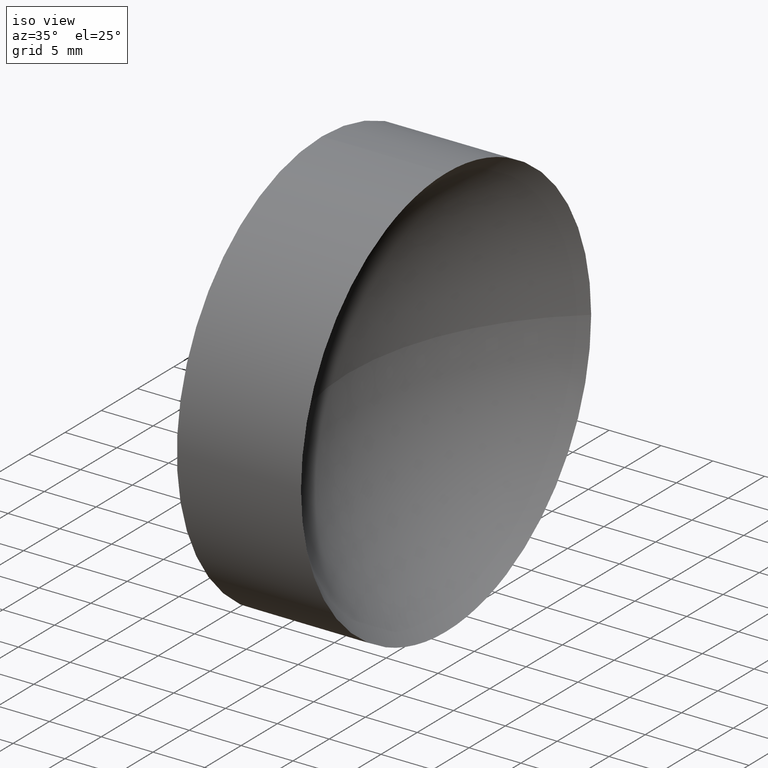
[diagram: clean part render]
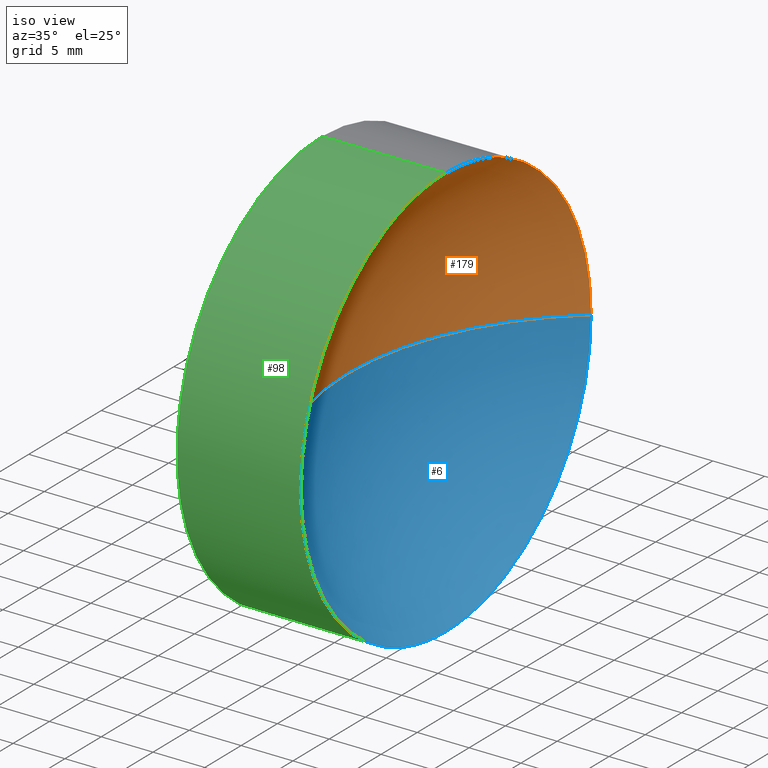
[diagram: same view with three faces highlighted in distinct colors, each labeled with its STEP entity id]
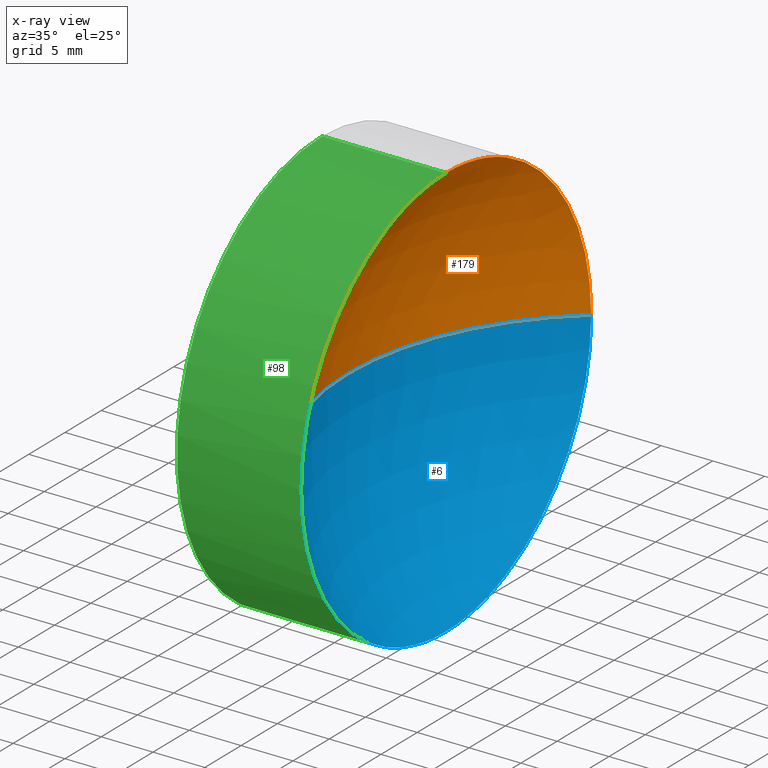
[diagram: x-ray of the same camera — body ghosted, the three highlighted faces saturated]
A machine part, iso view with three faces highlighted in distinct colors.
The next image is the same camera in x-ray (body ghosted, the three faces saturated) — at least one of them is partly hidden behind the body in this view.
Their STEP definitions:

[orange] entity #179 — the highlighted spherical surface has radius 25.84 mm.
#1 = CARTESIAN_POINT ( 'NONE',  ( 143.4842728140176900, 65.22153625845356800, 0.0000000000000000000 ) ) ;
#3 = ORIENTED_EDGE ( 'NONE', *, *, #91, .T. ) ;
#4 = DIRECTION ( 'NONE',  ( 0.0000000000000000000, 0.0000000000000000000, -1.000000000000000000 ) ) ;
#7 = FACE_OUTER_BOUND ( 'NONE', #183, .T. ) ;
#13 = VERTEX_POINT ( 'NONE', #185 ) ;
#18 = VERTEX_POINT ( 'NONE', #125 ) ;
#31 = CARTESIAN_POINT ( 'NONE',  ( 143.4842728140176900, 65.22153625845356800, 0.0000000000000000000 ) ) ;
#35 = AXIS2_PLACEMENT_3D ( 'NONE', #66, #169, #154 ) ;
#38 = CIRCLE ( 'NONE', #35, 19.99999999999998900 ) ;
#45 = DIRECTION ( 'NONE',  ( 0.0000000000000000000, -1.224646799147353200E-016, 1.000000000000000000 ) ) ;
#46 = DIRECTION ( 'NONE',  ( 0.0000000000000000000, -1.000000000000000000, -1.224646799147353000E-016 ) ) ;
#49 = AXIS2_PLACEMENT_3D ( 'NONE', #104, #130, #102 ) ;
#60 = ORIENTED_EDGE ( 'NONE', *, *, #112, .F. ) ;
#61 = CARTESIAN_POINT ( 'NONE',  ( 143.4842728140176900, 65.22153625845356800, 0.0000000000000000000 ) ) ;
#64 = VERTEX_POINT ( 'NONE', #152 ) ;
#66 = CARTESIAN_POINT ( 'NONE',  ( 127.1225614120891100, 65.22153625845356800, 0.0000000000000000000 ) ) ;
#82 = AXIS2_PLACEMENT_3D ( 'NONE', #61, #45, #46 ) ;
#83 = EDGE_CURVE ( 'NONE', #123, #64, #38, .T. ) ;
#85 = CIRCLE ( 'NONE', #49, 19.99999999999998900 ) ;
#91 = EDGE_CURVE ( 'NONE', #123, #13, #132, .T. ) ;
#99 = SPHERICAL_SURFACE ( 'NONE', #127, 25.83999999999999600 ) ;
#102 = DIRECTION ( 'NONE',  ( 0.0000000000000000000, 0.0000000000000000000, 1.000000000000000000 ) ) ;
#104 = CARTESIAN_POINT ( 'NONE',  ( 127.1225614120891100, 65.22153625845356800, 0.0000000000000000000 ) ) ;
#107 = EDGE_CURVE ( 'NONE', #18, #13, #177, .T. ) ;
#112 = EDGE_CURVE ( 'NONE', #64, #18, #85, .T. ) ;
#115 = DIRECTION ( 'NONE',  ( 0.0000000000000000000, 0.0000000000000000000, 1.000000000000000000 ) ) ;
#121 = AXIS2_PLACEMENT_3D ( 'NONE', #31, #4, #173 ) ;
#123 = VERTEX_POINT ( 'NONE', #172 ) ;
#125 = CARTESIAN_POINT ( 'NONE',  ( 127.1225614120891100, 85.22153625845358200, 2.449293598294706500E-015 ) ) ;
#127 = AXIS2_PLACEMENT_3D ( 'NONE', #1, #115, #161 ) ;
#130 = DIRECTION ( 'NONE',  ( -1.000000000000000000, -0.0000000000000000000, -0.0000000000000000000 ) ) ;
#132 = CIRCLE ( 'NONE', #121, 25.84000000000000300 ) ;
#134 = ORIENTED_EDGE ( 'NONE', *, *, #107, .F. ) ;
#152 = CARTESIAN_POINT ( 'NONE',  ( 127.1225614120891100, 65.22153625845356800, 19.99999999999998900 ) ) ;
#154 = DIRECTION ( 'NONE',  ( 0.0000000000000000000, 0.0000000000000000000, 1.000000000000000000 ) ) ;
#161 = DIRECTION ( 'NONE',  ( 0.0000000000000000000, -1.000000000000000000, 0.0000000000000000000 ) ) ;
#169 = DIRECTION ( 'NONE',  ( -1.000000000000000000, -0.0000000000000000000, -0.0000000000000000000 ) ) ;
#172 = CARTESIAN_POINT ( 'NONE',  ( 127.1225614120891100, 45.22153625845357500, 0.0000000000000000000 ) ) ;
#173 = DIRECTION ( 'NONE',  ( -1.000000000000000000, 0.0000000000000000000, 0.0000000000000000000 ) ) ;
#177 = CIRCLE ( 'NONE', #82, 25.83999999999999600 ) ;
#179 = ADVANCED_FACE ( 'NONE', ( #7 ), #99, .F. ) ;
#181 = ORIENTED_EDGE ( 'NONE', *, *, #83, .F. ) ;
#183 = EDGE_LOOP ( 'NONE', ( #134, #60, #181, #3 ) ) ;
#185 = CARTESIAN_POINT ( 'NONE',  ( 117.6442728140176800, 65.22153625845356800, 0.0000000000000000000 ) ) ;

[blue] entity #6 — the highlighted spherical surface has radius 25.84 mm.
#4 = DIRECTION ( 'NONE',  ( 0.0000000000000000000, 0.0000000000000000000, -1.000000000000000000 ) ) ;
#6 = ADVANCED_FACE ( 'NONE', ( #166 ), #178, .F. ) ;
#9 = CIRCLE ( 'NONE', #176, 19.99999999999998900 ) ;
#12 = CARTESIAN_POINT ( 'NONE',  ( 143.4842728140176900, 65.22153625845356800, 0.0000000000000000000 ) ) ;
#13 = VERTEX_POINT ( 'NONE', #185 ) ;
#18 = VERTEX_POINT ( 'NONE', #125 ) ;
#25 = ORIENTED_EDGE ( 'NONE', *, *, #65, .F. ) ;
#26 = EDGE_LOOP ( 'NONE', ( #77, #120, #106, #25 ) ) ;
#31 = CARTESIAN_POINT ( 'NONE',  ( 143.4842728140176900, 65.22153625845356800, 0.0000000000000000000 ) ) ;
#45 = DIRECTION ( 'NONE',  ( 0.0000000000000000000, -1.224646799147353200E-016, 1.000000000000000000 ) ) ;
#46 = DIRECTION ( 'NONE',  ( 0.0000000000000000000, -1.000000000000000000, -1.224646799147353000E-016 ) ) ;
#53 = DIRECTION ( 'NONE',  ( 0.0000000000000000000, 0.0000000000000000000, 1.000000000000000000 ) ) ;
#61 = CARTESIAN_POINT ( 'NONE',  ( 143.4842728140176900, 65.22153625845356800, 0.0000000000000000000 ) ) ;
#65 = EDGE_CURVE ( 'NONE', #126, #123, #9, .T. ) ;
#76 = EDGE_CURVE ( 'NONE', #18, #126, #171, .T. ) ;
#77 = ORIENTED_EDGE ( 'NONE', *, *, #76, .F. ) ;
#79 = DIRECTION ( 'NONE',  ( 0.0000000000000000000, -1.000000000000000000, 0.0000000000000000000 ) ) ;
#80 = DIRECTION ( 'NONE',  ( 0.0000000000000000000, 0.0000000000000000000, 1.000000000000000000 ) ) ;
#82 = AXIS2_PLACEMENT_3D ( 'NONE', #61, #45, #46 ) ;
#91 = EDGE_CURVE ( 'NONE', #123, #13, #132, .T. ) ;
#106 = ORIENTED_EDGE ( 'NONE', *, *, #91, .F. ) ;
#107 = EDGE_CURVE ( 'NONE', #18, #13, #177, .T. ) ;
#113 = DIRECTION ( 'NONE',  ( -1.000000000000000000, -0.0000000000000000000, -0.0000000000000000000 ) ) ;
#120 = ORIENTED_EDGE ( 'NONE', *, *, #107, .T. ) ;
#121 = AXIS2_PLACEMENT_3D ( 'NONE', #31, #4, #173 ) ;
#122 = AXIS2_PLACEMENT_3D ( 'NONE', #137, #186, #53 ) ;
#123 = VERTEX_POINT ( 'NONE', #172 ) ;
#124 = DIRECTION ( 'NONE',  ( 0.0000000000000000000, 0.0000000000000000000, 1.000000000000000000 ) ) ;
#125 = CARTESIAN_POINT ( 'NONE',  ( 127.1225614120891100, 85.22153625845358200, 2.449293598294706500E-015 ) ) ;
#126 = VERTEX_POINT ( 'NONE', #144 ) ;
#132 = CIRCLE ( 'NONE', #121, 25.84000000000000300 ) ;
#137 = CARTESIAN_POINT ( 'NONE',  ( 127.1225614120891100, 65.22153625845356800, 0.0000000000000000000 ) ) ;
#144 = CARTESIAN_POINT ( 'NONE',  ( 127.1225614120891100, 65.22153625845356800, -19.99999999999998900 ) ) ;
#153 = AXIS2_PLACEMENT_3D ( 'NONE', #12, #80, #79 ) ;
#166 = FACE_OUTER_BOUND ( 'NONE', #26, .T. ) ;
#168 = CARTESIAN_POINT ( 'NONE',  ( 127.1225614120891100, 65.22153625845356800, 0.0000000000000000000 ) ) ;
#171 = CIRCLE ( 'NONE', #122, 19.99999999999998900 ) ;
#172 = CARTESIAN_POINT ( 'NONE',  ( 127.1225614120891100, 45.22153625845357500, 0.0000000000000000000 ) ) ;
#173 = DIRECTION ( 'NONE',  ( -1.000000000000000000, 0.0000000000000000000, 0.0000000000000000000 ) ) ;
#176 = AXIS2_PLACEMENT_3D ( 'NONE', #168, #113, #124 ) ;
#177 = CIRCLE ( 'NONE', #82, 25.83999999999999600 ) ;
#178 = SPHERICAL_SURFACE ( 'NONE', #153, 25.83999999999999600 ) ;
#185 = CARTESIAN_POINT ( 'NONE',  ( 117.6442728140176800, 65.22153625845356800, 0.0000000000000000000 ) ) ;
#186 = DIRECTION ( 'NONE',  ( -1.000000000000000000, -0.0000000000000000000, -0.0000000000000000000 ) ) ;

[green] entity #98 — the highlighted cylindrical surface (partial cylindrical patch) has radius 20 mm, axis along (-1, -0, -0).
#5 = DIRECTION ( 'NONE',  ( 0.0000000000000000000, 0.0000000000000000000, 1.000000000000000000 ) ) ;
#9 = CIRCLE ( 'NONE', #176, 19.99999999999998900 ) ;
#15 = DIRECTION ( 'NONE',  ( 0.0000000000000000000, 0.0000000000000000000, 1.000000000000000000 ) ) ;
#22 = EDGE_CURVE ( 'NONE', #126, #138, #29, .T. ) ;
#24 = EDGE_CURVE ( 'NONE', #64, #52, #163, .T. ) ;
#28 = AXIS2_PLACEMENT_3D ( 'NONE', #128, #155, #15 ) ;
#29 = LINE ( 'NONE', #136, #62 ) ;
#35 = AXIS2_PLACEMENT_3D ( 'NONE', #66, #169, #154 ) ;
#38 = CIRCLE ( 'NONE', #35, 19.99999999999998900 ) ;
#39 = DIRECTION ( 'NONE',  ( -1.000000000000000000, -0.0000000000000000000, -0.0000000000000000000 ) ) ;
#41 = AXIS2_PLACEMENT_3D ( 'NONE', #51, #39, #5 ) ;
#44 = ORIENTED_EDGE ( 'NONE', *, *, #24, .T. ) ;
#48 = FACE_OUTER_BOUND ( 'NONE', #156, .T. ) ;
#51 = CARTESIAN_POINT ( 'NONE',  ( 103.2333421658140700, 65.22153625845356800, 0.0000000000000000000 ) ) ;
#52 = VERTEX_POINT ( 'NONE', #55 ) ;
#55 = CARTESIAN_POINT ( 'NONE',  ( 115.1442728140176700, 65.22153625845356800, 19.99999999999998900 ) ) ;
#62 = VECTOR ( 'NONE', #96, 1000.000000000000000 ) ;
#64 = VERTEX_POINT ( 'NONE', #152 ) ;
#65 = EDGE_CURVE ( 'NONE', #126, #123, #9, .T. ) ;
#66 = CARTESIAN_POINT ( 'NONE',  ( 127.1225614120891100, 65.22153625845356800, 0.0000000000000000000 ) ) ;
#67 = ORIENTED_EDGE ( 'NONE', *, *, #83, .T. ) ;
#69 = CARTESIAN_POINT ( 'NONE',  ( 115.1442728140176700, 65.22153625845356800, -19.99999999999998900 ) ) ;
#78 = ORIENTED_EDGE ( 'NONE', *, *, #22, .F. ) ;
#83 = EDGE_CURVE ( 'NONE', #123, #64, #38, .T. ) ;
#96 = DIRECTION ( 'NONE',  ( -1.000000000000000000, -0.0000000000000000000, -0.0000000000000000000 ) ) ;
#97 = CARTESIAN_POINT ( 'NONE',  ( 103.2333421658140700, 65.22153625845356800, 19.99999999999998900 ) ) ;
#98 = ADVANCED_FACE ( 'NONE', ( #48 ), #148, .T. ) ;
#100 = VECTOR ( 'NONE', #111, 1000.000000000000000 ) ;
#111 = DIRECTION ( 'NONE',  ( -1.000000000000000000, -0.0000000000000000000, -0.0000000000000000000 ) ) ;
#113 = DIRECTION ( 'NONE',  ( -1.000000000000000000, -0.0000000000000000000, -0.0000000000000000000 ) ) ;
#123 = VERTEX_POINT ( 'NONE', #172 ) ;
#124 = DIRECTION ( 'NONE',  ( 0.0000000000000000000, 0.0000000000000000000, 1.000000000000000000 ) ) ;
#126 = VERTEX_POINT ( 'NONE', #144 ) ;
#128 = CARTESIAN_POINT ( 'NONE',  ( 115.1442728140176700, 65.22153625845356800, 0.0000000000000000000 ) ) ;
#131 = ORIENTED_EDGE ( 'NONE', *, *, #146, .F. ) ;
#136 = CARTESIAN_POINT ( 'NONE',  ( 103.2333421658140700, 65.22153625845356800, -19.99999999999998900 ) ) ;
#138 = VERTEX_POINT ( 'NONE', #69 ) ;
#144 = CARTESIAN_POINT ( 'NONE',  ( 127.1225614120891100, 65.22153625845356800, -19.99999999999998900 ) ) ;
#146 = EDGE_CURVE ( 'NONE', #138, #52, #182, .T. ) ;
#148 = CYLINDRICAL_SURFACE ( 'NONE', #41, 19.99999999999998900 ) ;
#152 = CARTESIAN_POINT ( 'NONE',  ( 127.1225614120891100, 65.22153625845356800, 19.99999999999998900 ) ) ;
#154 = DIRECTION ( 'NONE',  ( 0.0000000000000000000, 0.0000000000000000000, 1.000000000000000000 ) ) ;
#155 = DIRECTION ( 'NONE',  ( -1.000000000000000000, -0.0000000000000000000, -0.0000000000000000000 ) ) ;
#156 = EDGE_LOOP ( 'NONE', ( #78, #165, #67, #44, #131 ) ) ;
#163 = LINE ( 'NONE', #97, #100 ) ;
#165 = ORIENTED_EDGE ( 'NONE', *, *, #65, .T. ) ;
#168 = CARTESIAN_POINT ( 'NONE',  ( 127.1225614120891100, 65.22153625845356800, 0.0000000000000000000 ) ) ;
#169 = DIRECTION ( 'NONE',  ( -1.000000000000000000, -0.0000000000000000000, -0.0000000000000000000 ) ) ;
#172 = CARTESIAN_POINT ( 'NONE',  ( 127.1225614120891100, 45.22153625845357500, 0.0000000000000000000 ) ) ;
#176 = AXIS2_PLACEMENT_3D ( 'NONE', #168, #113, #124 ) ;
#182 = CIRCLE ( 'NONE', #28, 19.99999999999998900 ) ;